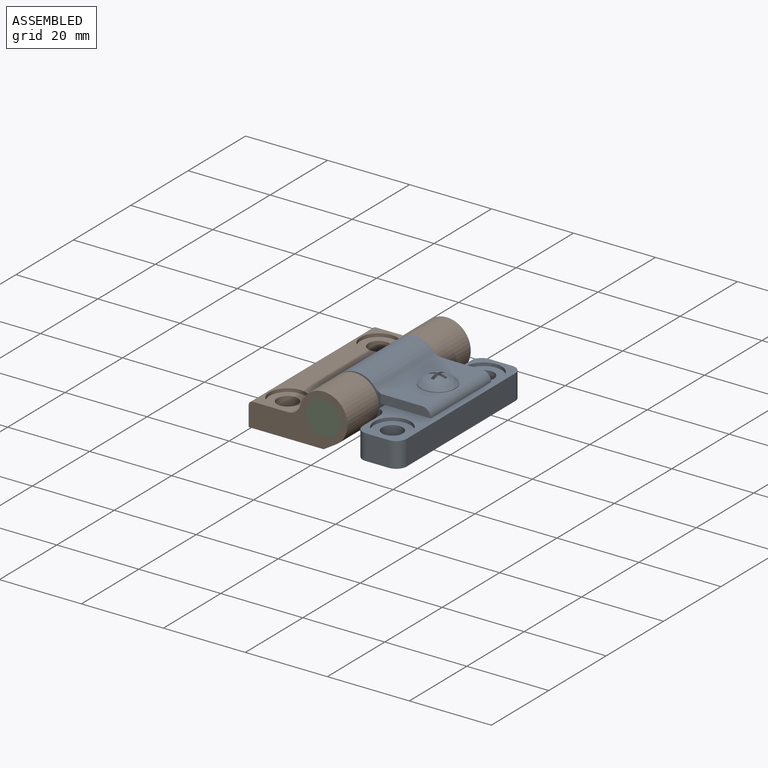
[diagram: assembled view]
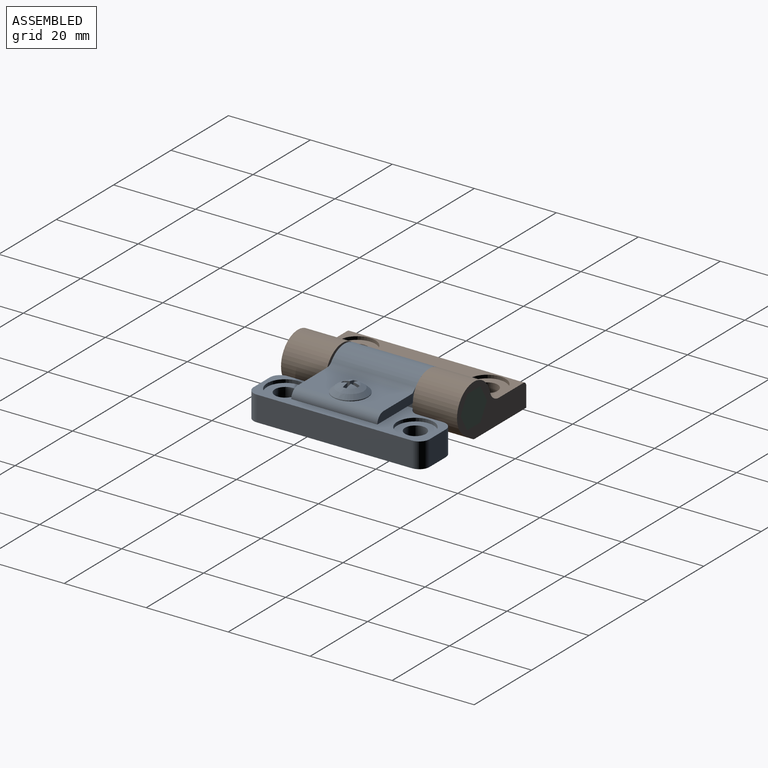
[diagram: assembled view, second angle]
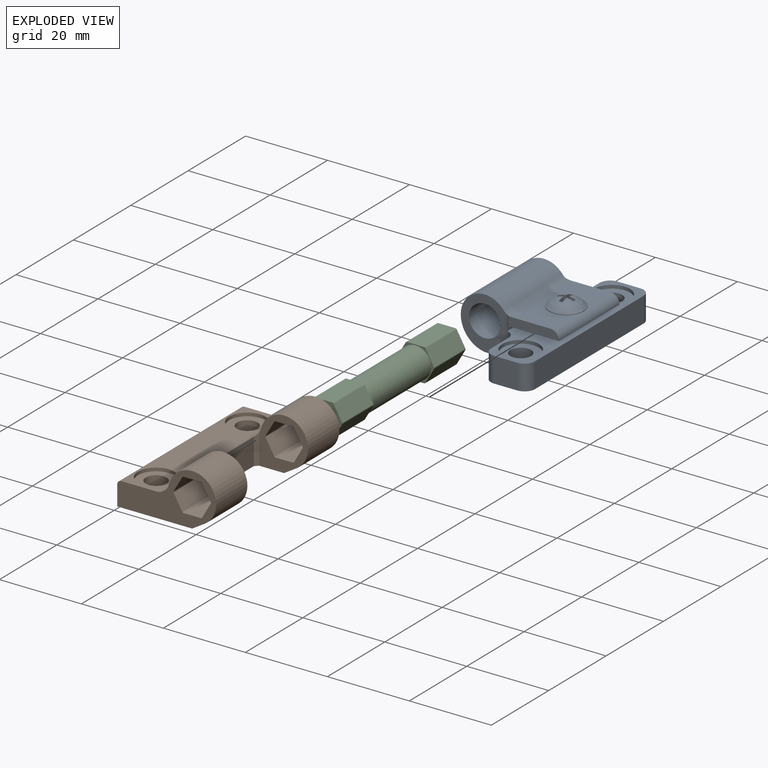
[diagram: exploded view]
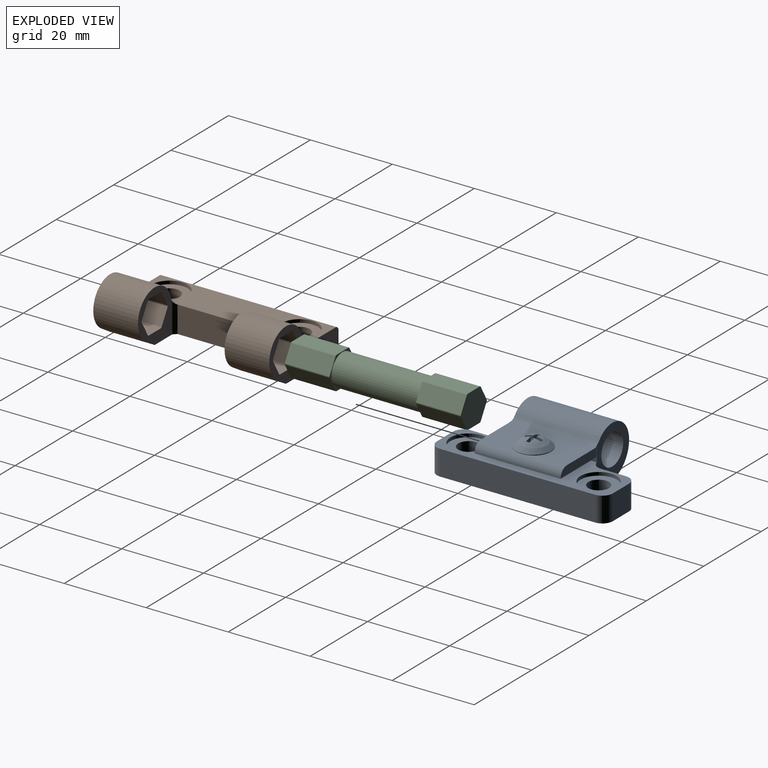
[diagram: exploded view, second angle]
ASSEMBLY  parts=3 mates=2
PART A: 52 faces, bbox 24.2x43x12.8 mm
  f0: revolved ~8.52x8.52mm, area 63.4mm2, adj f38,f39,f40,f41,f42,f43,f44,f45
  f1: cylinder r=2.54mm len=21mm, axis (0,-1,0), area 47.4mm2, adj f2,f5,f6,f14,f17,f20,f24,f25
  f2: plane 21x9.58mm, normal (0,0,1), area 147.1mm2, adj f1,f4,f24,f25,f38
  f3: plane 21x12.73mm, normal (0,0,-1), area 256.2mm2, adj f4,f5,f6,f7,f24,f25,f33
  f4: cylinder r=2.16mm len=21mm, axis (0,-1,0), area 71.3mm2, adj f2,f3,f24,f25,f37
  f5: cylinder r=2.54mm len=10.05mm, axis (0,0,-1), area 27.5mm2, adj f1,f3,f7,f8,f12,f16,f17,f25
  f6: cylinder r=2.54mm len=10.05mm, axis (0,0,-1), area 27.5mm2, adj f1,f3,f7,f8,f12,f20,f21,f24
  f7: plane 20.73x1.27mm, normal (1,0,0), area 26.3mm2, adj f3,f5,f6,f8
  f8: plane 42.93x12.73mm, normal (0,0,1), area 363.5mm2, adj f5,f6,f7,f9,f10,f11,f15,f16
  f9: plane 37.85x6.12mm, normal (1,0,0), area 231.6mm2, adj f8,f12,f18,f19
  f10: plane 6.12x5.64mm, normal (0,1,0), area 34.5mm2, adj f8,f12,f19,f22
  f11: plane 6.12x5.64mm, normal (0,-1,0), area 34.5mm2, adj f8,f12,f15,f18
  f12: plane 42.93x18.29mm, normal (0,0,-1), area 561.8mm2, adj f5,f6,f9,f10,f11,f13,f15,f16
  f13: cylinder r=6.83mm len=20.62mm, axis (0,-1,0), area 202.9mm2, adj f12,f14,f17,f20
  f14: cylinder r=5.84mm len=20.62mm, axis (0,-1,0), area 297.2mm2, adj f1,f13,f17,f20
  f15: cylinder r=2.54mm len=6.12mm, axis (0,0,-1), area 24.4mm2, adj f8,f11,f12,f16
  f16: plane 6.12x6.08mm, normal (-1,0,0), area 37.2mm2, adj f5,f8,f12,f15
  f17: plane 12.7x10.88mm, normal (0,-1,0), area 71.4mm2, adj f1,f5,f12,f13,f14,f23
  f18: cylinder r=2.54mm len=6.12mm, axis (0,0,-1), area 24.4mm2, adj f8,f9,f11,f12
  f19: cylinder r=2.54mm len=6.12mm, axis (0,0,-1), area 24.4mm2, adj f8,f9,f10,f12
  f20: plane 12.7x10.88mm, normal (0,1,0), area 71.4mm2, adj f1,f6,f12,f13,f14,f23
  f21: plane 6.12x6.08mm, normal (-1,0,0), area 37.2mm2, adj f6,f8,f12,f22
  f22: cylinder r=2.54mm len=6.12mm, axis (0,0,-1), area 24.4mm2, adj f8,f10,f12,f21
  f23: cylinder r=3.81mm len=20.62mm, axis (0,-1,0), area 493.6mm2, adj f17,f20
  f24: plane 12.29x2.22mm, normal (0,1,0), area 25.6mm2, adj f1,f2,f3,f4,f6
  f25: plane 12.29x2.22mm, normal (0,-1,0), area 25.6mm2, adj f1,f2,f3,f4,f5
  f26: cylinder r=2.54mm len=5.31mm, axis (0,0,1), area 84.7mm2, adj f12,f27
  f27: plane 8.89x8.89mm, normal (0,0,1), area 41.8mm2, adj f26,f28
  f28: cylinder r=4.45mm len=8.89mm, axis (0,0,1), area 22.6mm2, adj f8,f27
  f29: cylinder r=2.54mm len=5.31mm, axis (0,0,1), area 84.7mm2, adj f12,f30
  f30: plane 8.89x8.89mm, normal (0,0,1), area 41.8mm2, adj f29,f31
  f31: cylinder r=4.45mm len=8.89mm, axis (0,0,1), area 22.6mm2, adj f8,f30
  f32: cylinder r=1.88mm len=6.12mm, axis (0,0,-1), area 72.3mm2, adj f8,f12
  f33: cylinder r=1.88mm len=3.76mm, axis (0,0,-1), area 25.5mm2, adj f3,f36
  f34: cylinder r=1.81mm len=7.14mm, axis (0,0,1), area 81.2mm2, adj f35,f36
  f35: plane 3.62x3.62mm, normal (0,0,-1), area 10.3mm2, adj f34
  f36: plane 3.76x3.76mm, normal (0,0,-1), area 0.8mm2, adj f33,f34
  f37: plane 5.05x0.83mm, normal (0,0,-1), area 2.9mm2, adj f4,f38
  f38: cylinder r=4.26mm len=8.52mm, axis (0,0,1), area 4mm2, adj f0,f2,f37
  f39: plane 2.02x1.6mm, normal (0,-1,0), area 3mm2, adj f0,f40,f50,f51
  f40: plane 1.74x0.96mm, normal (1,0,0), area 1.4mm2, adj f0,f39,f41,f51
  f41: plane 2.02x1.6mm, normal (0,1,0), area 3mm2, adj f0,f40,f42,f51
  f42: plane 2.02x1.6mm, normal (1,0,0), area 3mm2, adj f0,f41,f43,f51
  f43: plane 1.74x0.96mm, normal (0,1,0), area 1.4mm2, adj f0,f42,f44,f51
  f44: plane 2.02x1.6mm, normal (-1,0,0), area 3mm2, adj f0,f43,f45,f51
  f45: plane 2.02x1.6mm, normal (0,1,0), area 3mm2, adj f0,f44,f46,f51
  f46: plane 1.67x0.89mm, normal (-1,0,0), area 1.4mm2, adj f0,f45,f47,f51
  f47: plane 2.02x1.6mm, normal (0,-1,0), area 3mm2, adj f0,f46,f48,f51
  f48: plane 2.02x1.6mm, normal (-1,0,0), area 3mm2, adj f0,f47,f49,f51
  f49: plane 1.74x0.96mm, normal (0,-1,0), area 1.4mm2, adj f0,f48,f50,f51
  f50: plane 2.02x1.6mm, normal (1,0,0), area 3mm2, adj f0,f39,f49,f51
  f51: plane 4.06x4.06mm, normal (0,0,1), area 6.2mm2, adj f39,f40,f41,f42,f43,f44,f45,f46
PART B: 46 faces, bbox 24.2x43x12.8 mm
  f0: cylinder r=3.18mm len=42.93mm, axis (0,-1,0), area 133.4mm2, adj f1,f2,f8,f9,f10,f11,f12,f13
  f1: cylinder r=5.84mm len=11.51mm, axis (0,-1,0), area 249.4mm2, adj f0,f3,f10,f14
  f2: cylinder r=5.84mm len=11.51mm, axis (0,-1,0), area 249.4mm2, adj f0,f4,f9,f15
  f3: plane 10.9x3.06mm, normal (0.52,0,-0.85), area 39.2mm2, adj f1,f5,f10,f14
  f4: plane 10.9x3.06mm, normal (0.52,0,-0.85), area 39.2mm2, adj f2,f5,f9,f15
  f5: plane 42.93x18.29mm, normal (0,0,-1), area 600.5mm2, adj f3,f4,f6,f9,f10,f11,f12,f13
  f6: plane 42.93x4.82mm, normal (-1,0,0), area 206.9mm2, adj f5,f7,f9,f10
  f7: cylinder r=1.02mm len=42.93mm, axis (0,-1,0), area 68.8mm2, adj f6,f8,f9,f10
  f8: plane 42.93x8.51mm, normal (0,0,1), area 244.1mm2, adj f0,f7,f9,f10,f42,f45
  f9: plane 24.13x12.7mm, normal (0,1,0), area 140.2mm2, adj f0,f2,f4,f5,f6,f7,f8,f16
  f10: plane 24.13x12.7mm, normal (0,-1,0), area 140.2mm2, adj f0,f1,f3,f5,f6,f7,f8,f28
  f11: plane 7.36x0.83mm, normal (0.71,-0.71,0), area 7.3mm2, adj f0,f5,f12,f15
  f12: plane 19.61x6.48mm, normal (1,0,0), area 127mm2, adj f0,f5,f11,f13
  f13: plane 7.36x0.83mm, normal (0.71,0.71,0), area 7.3mm2, adj f0,f5,f12,f14
  f14: plane 12.7x11.93mm, normal (0,1,0), area 68mm2, adj f0,f1,f3,f5,f13,f28,f29,f30
  f15: plane 12.7x11.93mm, normal (0,-1,0), area 68mm2, adj f0,f2,f4,f5,f11,f16,f17,f18
  f16: cylinder r=0.38mm len=10.9mm, axis (0,-1,0), area 4.3mm2, adj f9,f15,f17,f27
  f17: plane 10.9x4.18mm, normal (0,0,1), area 45.6mm2, adj f9,f15,f16,f18
  f18: cylinder r=0.38mm len=10.9mm, axis (0,-1,0), area 4.3mm2, adj f9,f15,f17,f19
  f19: plane 10.9x3.62mm, normal (-0.87,0,0.5), area 45.6mm2, adj f9,f15,f18,f20
  f20: cylinder r=0.38mm len=10.9mm, axis (0,-1,0), area 4.3mm2, adj f9,f15,f19,f21
  f21: plane 10.9x3.62mm, normal (-0.87,0,-0.5), area 45.6mm2, adj f9,f15,f20,f22
  f22: cylinder r=0.38mm len=10.9mm, axis (0,-1,0), area 4.3mm2, adj f9,f15,f21,f23
  f23: plane 10.9x4.18mm, normal (0,0,-1), area 45.6mm2, adj f9,f15,f22,f24
  f24: cylinder r=0.38mm len=10.9mm, axis (0,-1,0), area 4.3mm2, adj f9,f15,f23,f25
  f25: plane 10.9x3.62mm, normal (0.87,0,-0.5), area 45.6mm2, adj f9,f15,f24,f26
  f26: cylinder r=0.38mm len=10.9mm, axis (0,-1,0), area 4.3mm2, adj f9,f15,f25,f27
  f27: plane 10.9x3.62mm, normal (0.87,0,0.5), area 45.6mm2, adj f9,f15,f16,f26
  f28: plane 10.9x3.62mm, normal (0.87,0,0.5), area 45.6mm2, adj f10,f14,f29,f39
  f29: cylinder r=0.38mm len=10.9mm, axis (0,-1,0), area 4.3mm2, adj f10,f14,f28,f30
  f30: plane 10.9x3.62mm, normal (0.87,0,-0.5), area 45.6mm2, adj f10,f14,f29,f31
  f31: cylinder r=0.38mm len=10.9mm, axis (0,-1,0), area 4.3mm2, adj f10,f14,f30,f32
  f32: plane 10.9x4.18mm, normal (0,0,-1), area 45.6mm2, adj f10,f14,f31,f33
  f33: cylinder r=0.38mm len=10.9mm, axis (0,-1,0), area 4.3mm2, adj f10,f14,f32,f34
  f34: plane 10.9x3.62mm, normal (-0.87,0,-0.5), area 45.6mm2, adj f10,f14,f33,f35
  f35: cylinder r=0.38mm len=10.9mm, axis (0,-1,0), area 4.3mm2, adj f10,f14,f34,f36
  f36: plane 10.9x3.62mm, normal (-0.87,0,0.5), area 45.6mm2, adj f10,f14,f35,f37
  f37: cylinder r=0.38mm len=10.9mm, axis (0,-1,0), area 4.3mm2, adj f10,f14,f36,f38
  f38: plane 10.9x4.18mm, normal (0,0,1), area 45.6mm2, adj f10,f14,f37,f39
  f39: cylinder r=0.38mm len=10.9mm, axis (0,-1,0), area 4.3mm2, adj f10,f14,f28,f38
  f40: cylinder r=2.54mm len=5.08mm, axis (0,0,1), area 80.4mm2, adj f5,f41
  f41: plane 8.89x8.89mm, normal (0,0,1), area 41.8mm2, adj f40,f42
  f42: cylinder r=4.45mm len=8.89mm, axis (0,0,1), area 22.4mm2, adj f0,f8,f41
  f43: cylinder r=2.54mm len=5.08mm, axis (0,0,1), area 80.4mm2, adj f5,f44
  f44: plane 8.89x8.89mm, normal (0,0,1), area 41.8mm2, adj f43,f45
  f45: cylinder r=4.45mm len=8.89mm, axis (0,0,1), area 22.4mm2, adj f0,f8,f44
PART C: 29 faces, bbox 42.9x8x9.1 mm
  f0: plane 9.12x8mm, normal (1,0,0), area 55.4mm2, adj f1,f2,f3,f4,f5,f6,f7,f8
  f1: cylinder r=0.38mm len=10.9mm, axis (-1,0,0), area 4.3mm2, adj f0,f2,f12,f15
  f2: plane 10.9x3.62mm, normal (0,-0.5,0.87), area 45.6mm2, adj f0,f1,f3,f15
  f3: cylinder r=0.38mm len=10.9mm, axis (-1,0,0), area 4.3mm2, adj f0,f2,f4,f15
  f4: plane 10.9x4.18mm, normal (0,-1,0), area 45.6mm2, adj f0,f3,f5,f15
  f5: cylinder r=0.38mm len=10.9mm, axis (-1,0,0), area 4.3mm2, adj f0,f4,f6,f15
  f6: plane 10.9x3.62mm, normal (0,-0.5,-0.87), area 45.6mm2, adj f0,f5,f7,f15
  f7: cylinder r=0.38mm len=10.9mm, axis (-1,0,0), area 4.3mm2, adj f0,f6,f8,f15
  f8: plane 10.9x3.62mm, normal (0,0.5,-0.87), area 45.6mm2, adj f0,f7,f9,f15
  f9: cylinder r=0.38mm len=10.9mm, axis (-1,0,0), area 4.3mm2, adj f0,f8,f10,f15
  f10: plane 10.9x4.18mm, normal (0,1,0), area 45.6mm2, adj f0,f9,f11,f15
  f11: cylinder r=0.38mm len=10.9mm, axis (-1,0,0), area 4.3mm2, adj f0,f10,f12,f15
  f12: plane 10.9x3.62mm, normal (0,0.5,0.87), area 45.6mm2, adj f0,f1,f11,f15
  f13: plane 9.12x8mm, normal (1,0,0), area 9.8mm2, adj f14,f16,f17,f18,f19,f20,f21,f22
  f14: cylinder r=3.81mm len=21.13mm, axis (1,0,0), area 505.8mm2, adj f13,f15
  f15: plane 9.12x8mm, normal (-1,0,0), area 9.8mm2, adj f1,f2,f3,f4,f5,f6,f7,f8
  f16: plane 10.9x3.62mm, normal (0,0.5,0.87), area 45.6mm2, adj f13,f17,f27,f28
  f17: cylinder r=0.38mm len=10.9mm, axis (-1,0,0), area 4.3mm2, adj f13,f16,f18,f28
  f18: plane 10.9x4.18mm, normal (0,1,0), area 45.6mm2, adj f13,f17,f19,f28
  f19: cylinder r=0.38mm len=10.9mm, axis (-1,0,0), area 4.3mm2, adj f13,f18,f20,f28
  f20: plane 10.9x3.62mm, normal (0,0.5,-0.87), area 45.6mm2, adj f13,f19,f21,f28
  f21: cylinder r=0.38mm len=10.9mm, axis (-1,0,0), area 4.3mm2, adj f13,f20,f22,f28
  f22: plane 10.9x3.62mm, normal (0,-0.5,-0.87), area 45.6mm2, adj f13,f21,f23,f28
  f23: cylinder r=0.38mm len=10.9mm, axis (-1,0,0), area 4.3mm2, adj f13,f22,f24,f28
  f24: plane 10.9x4.18mm, normal (0,-1,0), area 45.6mm2, adj f13,f23,f25,f28
  f25: cylinder r=0.38mm len=10.9mm, axis (-1,0,0), area 4.3mm2, adj f13,f24,f26,f28
  f26: plane 10.9x3.62mm, normal (0,-0.5,0.87), area 45.6mm2, adj f13,f25,f27,f28
  f27: cylinder r=0.38mm len=10.9mm, axis (-1,0,0), area 4.3mm2, adj f13,f16,f26,f28
  f28: plane 9.12x8mm, normal (-1,0,0), area 55.4mm2, adj f16,f17,f18,f19,f20,f21,f22,f23
PLACE A t=(18.8,7.84,-7.56)mm
PLACE B t=(18.8,7.58,-7.56)mm
PLACE C rot(axis=(0.58,-0.58,-0.58),120deg) t=(18.8,7.58,-0.7)mm
MATE revolute A.f23 <-> C.f14  axis (0,1,0) through (18.8,18.15,-0.7)mm
MATE fastened B.f1 <-> C.f14  axis (0,-1,0) through (18.8,-13.88,-0.7)mm
